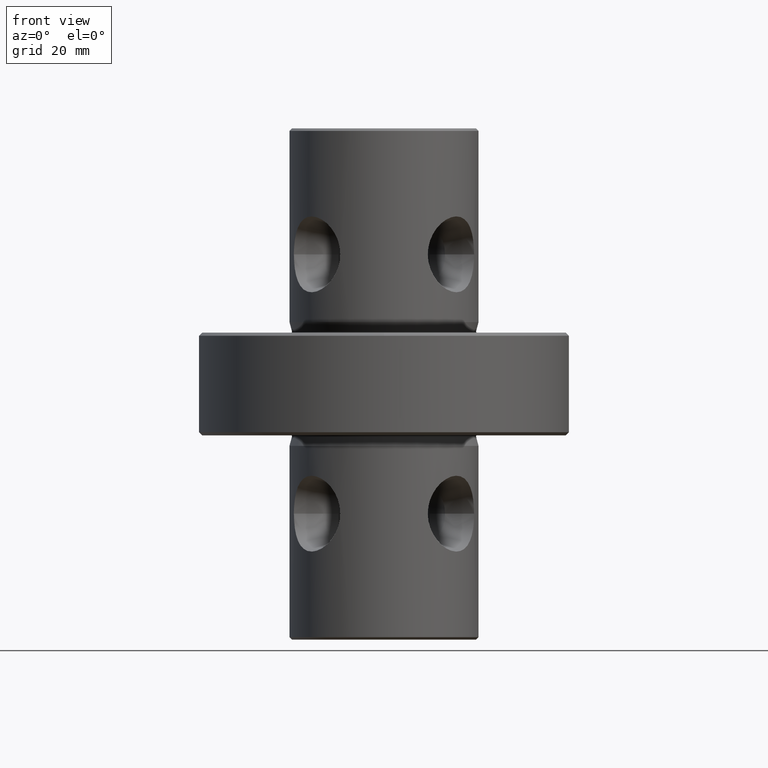
[diagram: clean part render]
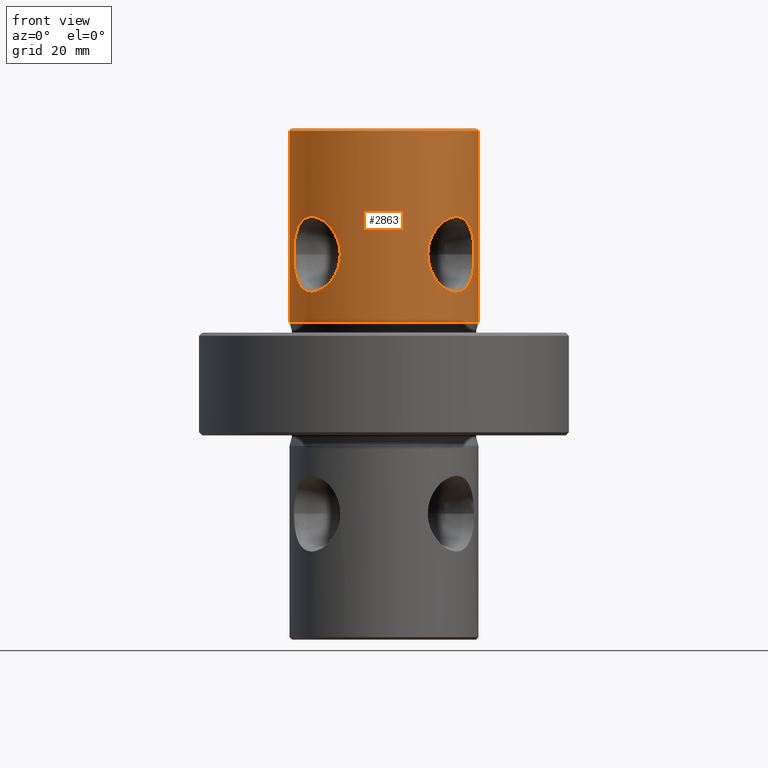
[diagram: same view with one face highlighted and labeled with its STEP entity id]
A machine part, front view. The second image highlights one B-rep face of the part: STEP entity #2863.
In plain terms, the highlighted cylindrical surface (partial cylindrical patch) has radius 23 mm, axis along (-0, -0, 1).
Its self-contained STEP definition (entity closure, byte-faithful):
#1229=VERTEX_POINT('NONE',#3590);
#1519=EDGE_CURVE('NONE',#1779,#2175,#3913,.T.);
#1779=VERTEX_POINT('NONE',#4191);
#1807=VERTEX_POINT('NONE',#4222);
#1845=EDGE_CURVE('NONE',#1229,#3467,#4262,.T.);
#1871=EDGE_CURVE('NONE',#3187,#1807,#4290,.T.);
#2015=VERTEX_POINT('NONE',#4450);
#2035=EDGE_CURVE('NONE',#2015,#3187,#4474,.T.);
#2175=VERTEX_POINT('NONE',#4622);
#2215=VERTEX_POINT('NONE',#4667);
#2275=EDGE_CURVE('NONE',#2215,#1807,#4741,.T.);
#2353=EDGE_CURVE('NONE',#2015,#2215,#4829,.T.);
#2815=EDGE_CURVE('NONE',#2175,#1779,#5346,.T.);
#2863=ADVANCED_FACE('NONE',(#5399,#5400,#5401),#5402,.T.);
#3187=VERTEX_POINT('NONE',#5766);
#3229=EDGE_CURVE('NONE',#3467,#1229,#5810,.T.);
#3467=VERTEX_POINT('NONE',#6083);
#3590=CARTESIAN_POINT('',(-21.9248945438115,-6.94974814239657,-30.65));
#3913=B_SPLINE_CURVE_WITH_KNOTS('',3,(#7749,#7750,#7751,#7752,#7753,#7754,#7755,#7756,#7757,#7758,#7759,#7760,#7761,#7762,#7763,#7764,#7765,#7766,#7767,#7768,#7769,#7770,#7771,#7772,#7773,#7774,#7775,#7776,#7777,#7778,#7779,#7780,#7781,#7782,#7783,#7784,#7785,#7786,#7787,#7788,#7789,#7790,#7791,#7792,#7793,#7794,#7795,#7796,#7797,#7798),.UNSPECIFIED.,.F.,.F.,(4,2,2,2,2,2,2,2,2,2,2,2,2,2,2,2,2,2,2,2,2,2,2,2,4),(0.0340774691384109,0.0358441044649262,0.0367274221281838,0.0376107397914414,0.0393773751179566,0.0411440104444718,0.0420273281077294,0.0429106457709871,0.0446772810975023,0.0455605987607599,0.0464439164240175,0.0482105517505327,0.0490938694137903,0.0499771870770479,0.0508605047403055,0.0517438224035631,0.0535104577300783,0.0543937753933359,0.0552770930565935,0.0561604107198511,0.0570437283831087,0.0588103637096239,0.0596936813728815,0.0605769990361392,0.0623436343626544),.UNSPECIFIED.);
#4191=CARTESIAN_POINT('',(21.9248945438115,-6.94974814239672,-30.65));
#4222=CARTESIAN_POINT('',(23.0,-8.03041173055158E-014,-0.599999999999997));
#4262=B_SPLINE_CURVE_WITH_KNOTS('',3,(#9247,#9248,#9249,#9250,#9251,#9252,#9253,#9254,#9255,#9256,#9257,#9258,#9259,#9260,#9261,#9262,#9263,#9264,#9265,#9266,#9267,#9268,#9269,#9270,#9271,#9272,#9273,#9274,#9275,#9276,#9277,#9278,#9279,#9280,#9281,#9282,#9283,#9284,#9285,#9286,#9287,#9288,#9289,#9290,#9291,#9292),.UNSPECIFIED.,.F.,.F.,(4,2,2,2,2,2,2,2,2,2,2,2,2,2,2,2,2,2,2,2,2,2,4),(0.0156104336384642,0.0173873645534072,0.0191642954683503,0.0200527609258218,0.0209412263832933,0.0227181572982363,0.0244950882131793,0.0262720191281223,0.0271604845855937,0.0280489500430652,0.0289374155005368,0.0298258809580082,0.0316028118729513,0.0324912773304228,0.0333797427878943,0.0342682082453658,0.0351566737028373,0.0369336046177803,0.0387105355327234,0.0404874664476664,0.0413759319051379,0.0422643973626094,0.0440413282775524),.UNSPECIFIED.);
#4290=LINE('',#9342,#9343);
#4450=CARTESIAN_POINT('',(-23.0,8.31207119193072E-014,-47.144943266665));
#4474=CIRCLE('',#10249,23.0);
#4622=CARTESIAN_POINT('',(10.6513838351866,-20.3849950305494,-30.65));
#4667=CARTESIAN_POINT('',(-23.0,8.31207119193072E-014,-0.599999999999997));
#4741=CIRCLE('',#10964,23.0);
#4829=LINE('',#11278,#11279);
#5346=B_SPLINE_CURVE_WITH_KNOTS('',3,(#13305,#13306,#13307,#13308,#13309,#13310,#13311,#13312,#13313,#13314,#13315,#13316,#13317,#13318,#13319,#13320,#13321,#13322,#13323,#13324,#13325,#13326,#13327,#13328,#13329,#13330,#13331,#13332,#13333,#13334,#13335,#13336,#13337,#13338,#13339,#13340,#13341,#13342,#13343,#13344,#13345,#13346,#13347,#13348),.UNSPECIFIED.,.F.,.F.,(4,2,2,2,2,2,2,2,2,2,2,2,2,2,2,2,2,2,2,2,2,4),(0.00582249101599476,0.00758842714864576,0.00935436328129675,0.0102373313476223,0.0111202994139478,0.0128862355465988,0.0146521716792498,0.0155351397455753,0.0164181078119008,0.0181840439445518,0.0199499800772028,0.0217159162098539,0.0234818523425049,0.0252477884751559,0.0270137246078069,0.0278966926741324,0.0287796607404579,0.0296626288067834,0.0305455968731089,0.03231153300576,0.0331945010720854,0.0340774691384109),.UNSPECIFIED.);
#5399=FACE_OUTER_BOUND('',#13480,.T.);
#5400=FACE_BOUND('',#13481,.T.);
#5401=FACE_BOUND('',#13482,.T.);
#5402=CYLINDRICAL_SURFACE('',#13483,23.0);
#5766=CARTESIAN_POINT('',(23.0,-8.03041173055158E-014,-47.144943266665));
#5810=B_SPLINE_CURVE_WITH_KNOTS('',3,(#14706,#14707,#14708,#14709,#14710,#14711,#14712,#14713,#14714,#14715,#14716,#14717,#14718,#14719,#14720,#14721,#14722,#14723,#14724,#14725,#14726,#14727,#14728,#14729,#14730,#14731,#14732,#14733,#14734,#14735,#14736,#14737,#14738,#14739,#14740,#14741,#14742,#14743,#14744,#14745,#14746,#14747,#14748,#14749,#14750,#14751,#14752),.UNSPECIFIED.,.F.,.F.,(4,2,2,2,2,2,2,2,2,2,2,1,2,2,2,2,2,2,2,2,2,2,2,4),(0.0440413282775524,0.0458177088277654,0.0467058991028719,0.0475940893779783,0.0493704699281913,0.0511468504784043,0.0529232310286172,0.0538114213037237,0.0546996115788302,0.0564759921290432,0.0573641824041497,0.0582523726792561,0.0591405629543626,0.0600287532294691,0.0618051337796821,0.0626933240547886,0.063581514329895,0.0644697046050015,0.065357894880108,0.067134275430321,0.068910655980534,0.070687036530747,0.0715752268058535,0.07246341708096),.UNSPECIFIED.);
#6083=CARTESIAN_POINT('',(-10.6513838351868,-20.3849950305494,-30.65));
#7749=CARTESIAN_POINT('',(21.9248945438115,-6.94974814239672,-30.65));
#7750=CARTESIAN_POINT('',(21.9248945438115,-6.94974814239672,-30.0557815962454));
#7751=CARTESIAN_POINT('',(21.9074664714408,-7.00545957316911,-29.466757571116));
#7752=CARTESIAN_POINT('',(21.8534414373691,-7.17150507917498,-28.5909688409873));
#7753=CARTESIAN_POINT('',(21.8305493021517,-7.24117740693723,-28.2987772200042));
#7754=CARTESIAN_POINT('',(21.775277433308,-7.40572925341474,-27.727034839031));
#7755=CARTESIAN_POINT('',(21.7429433238844,-7.50047813554072,-27.4471666353905));
#7756=CARTESIAN_POINT('',(21.6308760164709,-7.8202448394888,-26.624915553657));
#7757=CARTESIAN_POINT('',(21.5363334344138,-8.08048660175352,-26.0997216040234));
#7758=CARTESIAN_POINT('',(21.2967642659472,-8.69228124947875,-25.095746689207));
#7759=CARTESIAN_POINT('',(21.1549134557499,-9.03538130652969,-24.6310179862985));
#7760=CARTESIAN_POINT('',(20.9030171831391,-9.59718668725659,-23.9908860550821));
#7761=CARTESIAN_POINT('',(20.8124400205308,-9.79251105465659,-23.786868476771));
#7762=CARTESIAN_POINT('',(20.6162779009704,-10.1990204369696,-23.3980181345258));
#7763=CARTESIAN_POINT('',(20.510017907976,-10.4114616842392,-23.2122736869036));
#7764=CARTESIAN_POINT('',(20.1722593819626,-11.0597209448668,-22.6956053927916));
#7765=CARTESIAN_POINT('',(19.9213616789751,-11.5079028997479,-22.4024643484316));
#7766=CARTESIAN_POINT('',(19.4991839373673,-12.2006125194746,-22.0407833200085));
#7767=CARTESIAN_POINT('',(19.3507849912586,-12.4349619292511,-21.9333276667476));
#7768=CARTESIAN_POINT('',(19.0368520556152,-12.9104384810301,-21.7461625199286));
#7769=CARTESIAN_POINT('',(18.8728148201359,-13.1491847527046,-21.6675490354098));
#7770=CARTESIAN_POINT('',(18.3662091506926,-13.8570977126026,-21.4795187798394));
#7771=CARTESIAN_POINT('',(18.0063259814014,-14.3223185807637,-21.4156456739601));
#7772=CARTESIAN_POINT('',(17.4307336603603,-15.0086198659613,-21.4150479985283));
#7773=CARTESIAN_POINT('',(17.232283712851,-15.2360182487445,-21.431157297569));
#7774=CARTESIAN_POINT('',(16.833931927974,-15.6750307776605,-21.4947854772818));
#7775=CARTESIAN_POINT('',(16.632795777999,-15.8881767155194,-21.5421983059199));
#7776=CARTESIAN_POINT('',(16.2270240267396,-16.3023846713237,-21.6674236895639));
#7777=CARTESIAN_POINT('',(16.0223874638694,-16.5034453739541,-21.745237580662));
#7778=CARTESIAN_POINT('',(15.610122066255,-16.8939248941762,-21.9314412912703));
#7779=CARTESIAN_POINT('',(15.4020539810231,-17.0836453283288,-22.0402753949351));
#7780=CARTESIAN_POINT('',(14.7886578260977,-17.6236323684001,-22.4047429377217));
#7781=CARTESIAN_POINT('',(14.3892444090269,-17.9495822327065,-22.6997452160283));
#7782=CARTESIAN_POINT('',(13.8088798763468,-18.3949531341745,-23.2178754867884));
#7783=CARTESIAN_POINT('',(13.6182408983223,-18.5363037666837,-23.4038295804111));
#7784=CARTESIAN_POINT('',(13.2514891071728,-18.8002414595661,-23.7939220137337));
#7785=CARTESIAN_POINT('',(13.0744373632093,-18.9235688588654,-23.9988219825878));
#7786=CARTESIAN_POINT('',(12.7336523556294,-19.1545417174799,-24.4279856552036));
#7787=CARTESIAN_POINT('',(12.5699178681034,-19.2621839837188,-24.6522501353154));
#7788=CARTESIAN_POINT('',(12.2568811465605,-19.4628731587243,-25.1204396241895));
#7789=CARTESIAN_POINT('',(12.1075241651906,-19.5559246094301,-25.3647631205497));
#7790=CARTESIAN_POINT('',(11.6918452589745,-19.8092420198692,-26.111867469035));
#7791=CARTESIAN_POINT('',(11.4541360304372,-19.9462546109461,-26.6335561768909));
#7792=CARTESIAN_POINT('',(11.1607663832464,-20.1109390641191,-27.451529352878));
#7793=CARTESIAN_POINT('',(11.0735684480361,-20.1589569808573,-27.7301349223514));
#7794=CARTESIAN_POINT('',(10.9218052899568,-20.2415818042382,-28.2997510073626));
#7795=CARTESIAN_POINT('',(10.8571068071181,-20.2762575443938,-28.5921799057788));
#7796=CARTESIAN_POINT('',(10.7029534929403,-20.3582990310827,-29.4687895062079));
#7797=CARTESIAN_POINT('',(10.6513838351866,-20.3849950305494,-30.0573351876004));
#7798=CARTESIAN_POINT('',(10.6513838351866,-20.3849950305494,-30.65));
#9247=CARTESIAN_POINT('',(-21.9248945438115,-6.94974814239657,-30.65));
#9248=CARTESIAN_POINT('',(-21.9248945438115,-6.94974814239657,-31.2414080018557));
#9249=CARTESIAN_POINT('',(-21.9075728163608,-7.00514540980008,-31.8329010145328));
#9250=CARTESIAN_POINT('',(-21.8348497488472,-7.22863371335565,-33.009025573499));
#9251=CARTESIAN_POINT('',(-21.780548525415,-7.39314437945779,-33.5763554036306));
#9252=CARTESIAN_POINT('',(-21.6686601120607,-7.7124502214833,-34.3981380613096));
#9253=CARTESIAN_POINT('',(-21.6262345349065,-7.83105220963485,-34.6671630194382));
#9254=CARTESIAN_POINT('',(-21.5298078315844,-8.092389857382,-35.1953158584363));
#9255=CARTESIAN_POINT('',(-21.4756959837543,-8.23535308322069,-35.4544956782495));
#9256=CARTESIAN_POINT('',(-21.297414568362,-8.69059067446666,-36.2013257825749));
#9257=CARTESIAN_POINT('',(-21.1565781907539,-9.03153134962191,-36.6642154188223));
#9258=CARTESIAN_POINT('',(-20.8199418887192,-9.78260594172332,-37.5207612428869));
#9259=CARTESIAN_POINT('',(-20.6222389858213,-10.1959214621669,-37.9156399640454));
#9260=CARTESIAN_POINT('',(-20.1757535382341,-11.0531680714371,-38.5994687319972));
#9261=CARTESIAN_POINT('',(-19.9256181681984,-11.5007056026059,-38.8934296440328));
#9262=CARTESIAN_POINT('',(-19.500698843825,-12.1982321173235,-39.2581456434229));
#9263=CARTESIAN_POINT('',(-19.3500520024864,-12.4360538850659,-39.3670732377512));
#9264=CARTESIAN_POINT('',(-19.0384833223605,-12.9079859589089,-39.5529009230979));
#9265=CARTESIAN_POINT('',(-18.8767592385378,-13.1434890237679,-39.6306438789026));
#9266=CARTESIAN_POINT('',(-18.5409145760402,-13.6131491489519,-39.7559713149113));
#9267=CARTESIAN_POINT('',(-18.3667954167131,-13.8473069227183,-39.8035570332755));
#9268=CARTESIAN_POINT('',(-18.0054762336785,-14.3139759846729,-39.8678006545673));
#9269=CARTESIAN_POINT('',(-17.8170691706251,-14.5479106261535,-39.8844333399585));
#9270=CARTESIAN_POINT('',(-17.2399262376443,-15.2362584970899,-39.8853832324868));
#9271=CARTESIAN_POINT('',(-16.8436622097219,-15.6725476157873,-39.8221668570666));
#9272=CARTESIAN_POINT('',(-16.2339420666141,-16.2955070902658,-39.6350570485114));
#9273=CARTESIAN_POINT('',(-16.0271170324212,-16.4988666458637,-39.5566980940504));
#9274=CARTESIAN_POINT('',(-15.6137450989314,-16.8905904264628,-39.3703915579331));
#9275=CARTESIAN_POINT('',(-15.4085013488994,-17.0778125384573,-39.2632004024681));
#9276=CARTESIAN_POINT('',(-15.0014068334394,-17.436495861708,-39.0220106791575));
#9277=CARTESIAN_POINT('',(-14.7995553128154,-17.6079531601183,-38.8880079698727));
#9278=CARTESIAN_POINT('',(-14.3999811438501,-17.9362034723841,-38.5935309014717));
#9279=CARTESIAN_POINT('',(-14.2013945696509,-18.093649893073,-38.4322683616821));
#9280=CARTESIAN_POINT('',(-13.6196454787616,-18.5403439487215,-37.9137318801531));
#9281=CARTESIAN_POINT('',(-13.2539058828002,-18.8016969178142,-37.52592261373));
#9282=CARTESIAN_POINT('',(-12.571856726224,-19.264429568372,-36.6694934643703));
#9283=CARTESIAN_POINT('',(-12.2538342740065,-19.4666157456507,-36.1964730900885));
#9284=CARTESIAN_POINT('',(-11.6990194193443,-19.8050126894541,-35.2027093742512));
#9285=CARTESIAN_POINT('',(-11.4590845837459,-19.9434459471097,-34.6790815016961));
#9286=CARTESIAN_POINT('',(-11.1618225858456,-20.1103612721848,-33.851985209019));
#9287=CARTESIAN_POINT('',(-11.0730289009873,-20.1592535293225,-33.5680868277217));
#9288=CARTESIAN_POINT('',(-10.9211904905853,-20.241913698313,-32.9976927250925));
#9289=CARTESIAN_POINT('',(-10.8576272899137,-20.2759780469123,-32.7100430377524));
#9290=CARTESIAN_POINT('',(-10.7042090652881,-20.3576357367157,-31.8398076778151));
#9291=CARTESIAN_POINT('',(-10.6513838351868,-20.3849950305494,-31.2499965695858));
#9292=CARTESIAN_POINT('',(-10.6513838351868,-20.3849950305494,-30.65));
#9342=CARTESIAN_POINT('',(23.0,-8.03041173055158E-014,0.0));
#9343=VECTOR('',#16366,1000.0);
#10249=AXIS2_PLACEMENT_3D('',#16524,#16525,#16526);
#10964=AXIS2_PLACEMENT_3D('',#16790,#16791,#16792);
#11278=CARTESIAN_POINT('',(-23.0,8.31207119193072E-014,0.0));
#11279=VECTOR('',#16875,1000.0);
#13305=CARTESIAN_POINT('',(10.6513838351866,-20.3849950305494,-30.65));
#13306=CARTESIAN_POINT('',(10.6513838351866,-20.3849950305494,-31.2424302492194));
#13307=CARTESIAN_POINT('',(10.7046614533567,-20.3574022814185,-31.8445207323126));
#13308=CARTESIAN_POINT('',(10.9105796122972,-20.2477864716666,-33.0082341350945));
#13309=CARTESIAN_POINT('',(11.0622585022081,-20.1662583265641,-33.5746180936553));
#13310=CARTESIAN_POINT('',(11.359187512644,-19.9995435840031,-34.4012997569281));
#13311=CARTESIAN_POINT('',(11.4703123814805,-19.9361806335004,-34.6739090935432));
#13312=CARTESIAN_POINT('',(11.710701937952,-19.7959294932253,-35.20066916443));
#13313=CARTESIAN_POINT('',(11.8403266504619,-19.7188476662026,-35.4560737122329));
#13314=CARTESIAN_POINT('',(12.2555615261672,-19.4655173465411,-36.1990401364312));
#13315=CARTESIAN_POINT('',(12.5678474297455,-19.267119890047,-36.6642983953448));
#13316=CARTESIAN_POINT('',(13.2556626484224,-18.8005347164921,-37.5282887203257));
#13317=CARTESIAN_POINT('',(13.6210079681561,-18.5391696543574,-37.9145385254326));
#13318=CARTESIAN_POINT('',(14.1949771433211,-18.0986405922101,-38.4267491075384));
#13319=CARTESIAN_POINT('',(14.3906737649783,-17.9436708954218,-38.5862024853334));
#13320=CARTESIAN_POINT('',(14.7903134935294,-17.6157158065282,-38.8816447749408));
#13321=CARTESIAN_POINT('',(14.9954083937046,-17.4416676105185,-39.0182004950114));
#13322=CARTESIAN_POINT('',(15.6080683550629,-16.902200150953,-39.3819398262879));
#13323=CARTESIAN_POINT('',(16.0161247520544,-16.5172262204009,-39.5666598872093));
#13324=CARTESIAN_POINT('',(16.8266504680969,-15.6907249072107,-39.8184406915801));
#13325=CARTESIAN_POINT('',(17.2327253469743,-15.244167613344,-39.8841906588016));
#13326=CARTESIAN_POINT('',(17.9951875490013,-14.3361324695415,-39.885311160027));
#13327=CARTESIAN_POINT('',(18.3564800678489,-13.8702645549063,-39.8232938802854));
#13328=CARTESIAN_POINT('',(19.0401369760376,-12.9157958809417,-39.5711334630298));
#13329=CARTESIAN_POINT('',(19.3508584863595,-12.4434296427609,-39.3850920428584));
#13330=CARTESIAN_POINT('',(19.9163490902059,-11.5166707146861,-38.9029990931867));
#13331=CARTESIAN_POINT('',(20.1731909181708,-11.0579320712105,-38.6029669683016));
#13332=CARTESIAN_POINT('',(20.6216527525724,-10.1972021292508,-37.9169614668246));
#13333=CARTESIAN_POINT('',(20.816019834769,-9.79110927977541,-37.5297742985527));
#13334=CARTESIAN_POINT('',(21.0709668435739,-9.22266132683567,-36.8825205852573));
#13335=CARTESIAN_POINT('',(21.1491818209756,-9.04137132604292,-36.6569863639228));
#13336=CARTESIAN_POINT('',(21.2920111470047,-8.699686687916,-36.1920829392851));
#13337=CARTESIAN_POINT('',(21.3569357384845,-8.53859621808719,-35.9519310952766));
#13338=CARTESIAN_POINT('',(21.4752825219063,-8.23641731079699,-35.4562849523119));
#13339=CARTESIAN_POINT('',(21.5287024826833,-8.09532792484614,-35.2007906883533));
#13340=CARTESIAN_POINT('',(21.6250814962666,-7.83423353484657,-34.6740445044034));
#13341=CARTESIAN_POINT('',(21.6682037592907,-7.71374429661444,-34.40134914223));
#13342=CARTESIAN_POINT('',(21.7809139417854,-7.39211801659788,-33.5739518737954));
#13343=CARTESIAN_POINT('',(21.8347944302286,-7.22878395991261,-33.0077845132198));
#13344=CARTESIAN_POINT('',(21.8888622460157,-7.06265537261349,-32.1365518754621));
#13345=CARTESIAN_POINT('',(21.9023637532852,-7.02049466234318,-31.8424546140615));
#13346=CARTESIAN_POINT('',(21.9204340512599,-6.96386776795584,-31.2465806476545));
#13347=CARTESIAN_POINT('',(21.9248945438115,-6.94974814239672,-30.9469916128492));
#13348=CARTESIAN_POINT('',(21.9248945438115,-6.94974814239672,-30.65));
#13480=EDGE_LOOP('',(#17399,#17400,#17401,#17402));
#13481=EDGE_LOOP('',(#17403,#17404));
#13482=EDGE_LOOP('',(#17405,#17406));
#13483=AXIS2_PLACEMENT_3D('',#17407,#17408,#17409);
#14706=CARTESIAN_POINT('',(-10.6513838351868,-20.3849950305494,-30.65));
#14707=CARTESIAN_POINT('',(-10.6513838351868,-20.3849950305494,-30.0501892659733));
#14708=CARTESIAN_POINT('',(-10.7043967337572,-20.3575382698098,-29.4584162587968));
#14709=CARTESIAN_POINT('',(-10.8580951153181,-20.2757278273017,-28.587661042613));
#14710=CARTESIAN_POINT('',(-10.9217515420961,-20.2416113327971,-28.2999292932252));
#14711=CARTESIAN_POINT('',(-11.0737315129261,-20.1588679363432,-27.7295463512898));
#14712=CARTESIAN_POINT('',(-11.1625564338296,-20.1099542104055,-27.4457851760545));
#14713=CARTESIAN_POINT('',(-11.4599333705069,-19.9429592858151,-26.6189345926646));
#14714=CARTESIAN_POINT('',(-11.699971597739,-19.8044540380583,-26.0953255849322));
#14715=CARTESIAN_POINT('',(-12.2551663143087,-19.4657810976621,-25.1014016134273));
#14716=CARTESIAN_POINT('',(-12.5733242686258,-19.2634526033198,-24.6285629734536));
#14717=CARTESIAN_POINT('',(-13.2538709284699,-18.801701911684,-23.7742223020155));
#14718=CARTESIAN_POINT('',(-13.6183501600879,-18.5412293889585,-23.3877701414694));
#14719=CARTESIAN_POINT('',(-14.1971917696331,-18.0969308983719,-22.8713062122383));
#14720=CARTESIAN_POINT('',(-14.396553042897,-17.9389586514174,-22.7091556356362));
#14721=CARTESIAN_POINT('',(-14.7965601668547,-17.6104737086446,-22.4140418300654));
#14722=CARTESIAN_POINT('',(-14.9980230851255,-17.4393842210896,-22.2802043217393));
#14723=CARTESIAN_POINT('',(-15.6055719782985,-16.9043602990805,-21.9196282302583));
#14724=CARTESIAN_POINT('',(-16.0147323859784,-16.5188835173125,-21.7333266418787));
#14725=CARTESIAN_POINT('',(-16.6315893687973,-15.8895099540851,-21.5423796158903));
#14726=CARTESIAN_POINT('',(-16.8355753358596,-15.6732578551542,-21.4944542485713));
#14727=CARTESIAN_POINT('',(-17.2333323042106,-15.2348241334191,-21.4310590036821));
#14728=CARTESIAN_POINT('',(-17.6225410603829,-14.7888120222543,-21.3995163774851));
#14729=CARTESIAN_POINT('',(-17.9946336425985,-14.3276353739041,-21.4308905389506));
#14730=CARTESIAN_POINT('',(-18.3581243387173,-13.858832782853,-21.4943145653371));
#14731=CARTESIAN_POINT('',(-18.5359629340563,-13.6199404552441,-21.5424295118152));
#14732=CARTESIAN_POINT('',(-19.0440012767127,-12.9098727709062,-21.7312763944613));
#14733=CARTESIAN_POINT('',(-19.3534289267631,-12.4395353082169,-21.9164144728386));
#14734=CARTESIAN_POINT('',(-19.7791891040612,-11.7412942584154,-22.280418150297));
#14735=CARTESIAN_POINT('',(-19.9148549177896,-11.5093634716627,-22.4167128324554));
#14736=CARTESIAN_POINT('',(-20.1686353946688,-11.0586183692343,-22.7120691733596));
#14737=CARTESIAN_POINT('',(-20.2875628093397,-10.8385137609186,-22.8717267324637));
#14738=CARTESIAN_POINT('',(-20.5111659423261,-10.4091621648856,-23.2142923272696));
#14739=CARTESIAN_POINT('',(-20.6158379234354,-10.1999146834457,-23.3972022287155));
#14740=CARTESIAN_POINT('',(-20.8122071214181,-9.79301115950164,-23.7863507379254));
#14741=CARTESIAN_POINT('',(-20.9041521962665,-9.59473982110367,-23.9934397036402));
#14742=CARTESIAN_POINT('',(-21.1574186338803,-9.02962246542549,-24.6380551253011));
#14743=CARTESIAN_POINT('',(-21.2981916385491,-8.68866098376023,-25.1015600984003));
#14744=CARTESIAN_POINT('',(-21.5353738721929,-8.0829121576293,-26.0958690043566));
#14745=CARTESIAN_POINT('',(-21.631729865726,-7.81786699687365,-26.6301839121269));
#14746=CARTESIAN_POINT('',(-21.7807567882508,-7.39252427088427,-27.7256137294668));
#14747=CARTESIAN_POINT('',(-21.8348046727397,-7.22876207031578,-28.2913472839122));
#14748=CARTESIAN_POINT('',(-21.8891283224751,-7.06183300026986,-29.1682561001215));
#14749=CARTESIAN_POINT('',(-21.9026962612974,-7.01945551432055,-29.4662141073027));
#14750=CARTESIAN_POINT('',(-21.9205171619351,-6.96360442482792,-30.0585097562878));
#14751=CARTESIAN_POINT('',(-21.9248945438115,-6.94974814239657,-30.354387586793));
#14752=CARTESIAN_POINT('',(-21.9248945438115,-6.94974814239657,-30.65));
#16366=DIRECTION('',(0.0,0.0,1.0));
#16524=CARTESIAN_POINT('',(0.0,0.0,-47.144943266665));
#16525=DIRECTION('',(0.0,0.0,1.0));
#16526=DIRECTION('',(1.0,-3.49148336110938E-015,-0.0));
#16790=CARTESIAN_POINT('',(0.0,0.0,-0.599999999999997));
#16791=DIRECTION('',(0.0,0.0,1.0));
#16792=DIRECTION('',(1.0,-3.49148336110938E-015,-0.0));
#16875=DIRECTION('',(0.0,0.0,1.0));
#17399=ORIENTED_EDGE('',*,*,#2353,.F.);
#17400=ORIENTED_EDGE('',*,*,#2035,.T.);
#17401=ORIENTED_EDGE('',*,*,#1871,.T.);
#17402=ORIENTED_EDGE('',*,*,#2275,.F.);
#17403=ORIENTED_EDGE('',*,*,#1845,.F.);
#17404=ORIENTED_EDGE('',*,*,#3229,.F.);
#17405=ORIENTED_EDGE('',*,*,#2815,.F.);
#17406=ORIENTED_EDGE('',*,*,#1519,.F.);
#17407=CARTESIAN_POINT('',(0.0,0.0,0.0));
#17408=DIRECTION('',(-0.0,-0.0,1.0));
#17409=DIRECTION('',(1.0,-3.49148336110938E-015,0.0));